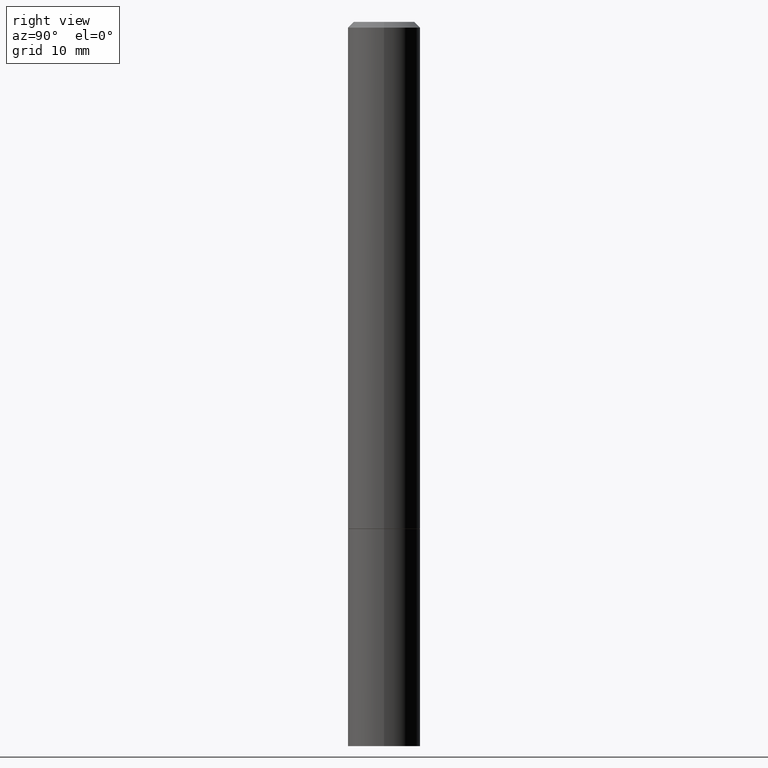
[diagram: clean part render]
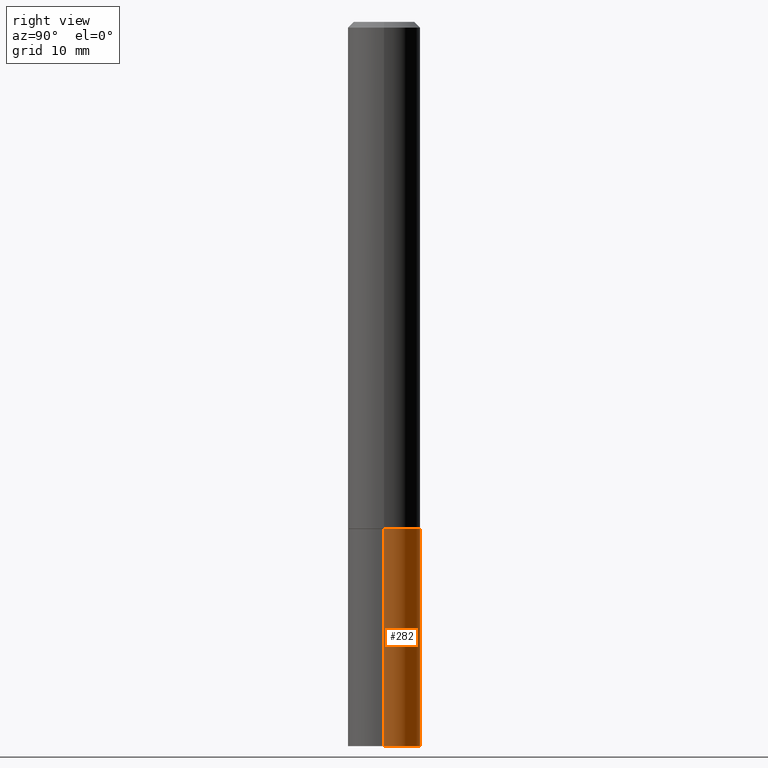
[diagram: same view with one face highlighted and labeled with its STEP entity id]
A machine part, right view. The second image highlights one B-rep face of the part: STEP entity #282.
In plain terms, the highlighted cylindrical surface (edge-blend (fillet) strip) has radius 3.175 mm, axis along (-0, 0, 1).
Its self-contained STEP definition (entity closure, byte-faithful):
#13 = ORIENTED_EDGE ( 'NONE', *, *, #251, .F. ) ;
#14 = VERTEX_POINT ( 'NONE', #366 ) ;
#59 = VECTOR ( 'NONE', #125, 39.37007874015748143 ) ;
#67 = CARTESIAN_POINT ( 'NONE',  ( 4.279570410823989044E-29, -6.110092342975505460E-15, -1.750000000000000222 ) ) ;
#76 = CIRCLE ( 'NONE', #358, 0.1250000000000000000 ) ;
#82 = EDGE_CURVE ( 'NONE', #346, #248, #267, .T. ) ;
#89 = DIRECTION ( 'NONE',  ( 1.000000000000000000, -6.982962677686262766E-15, 0.000000000000000000 ) ) ;
#94 = DIRECTION ( 'NONE',  ( -2.445468806185136597E-29, 3.491481338843145583E-15, 1.000000000000000000 ) ) ;
#95 = CARTESIAN_POINT ( 'NONE',  ( 6.113672015462842613E-29, -8.728703347107864943E-15, -2.500000000000000000 ) ) ;
#97 = AXIS2_PLACEMENT_3D ( 'NONE', #136, #312, #314 ) ;
#125 = DIRECTION ( 'NONE',  ( -2.445468806185136877E-29, 3.491481338843145188E-15, 1.000000000000000000 ) ) ;
#135 = VECTOR ( 'NONE', #211, 39.37007874015748143 ) ;
#136 = CARTESIAN_POINT ( 'NONE',  ( 0.000000000000000000, 0.000000000000000000, 0.000000000000000000 ) ) ;
#155 = CARTESIAN_POINT ( 'NONE',  ( 0.1250000000000000000, -8.728703347107833388E-16, 6.095220969744919741E-30 ) ) ;
#158 = ORIENTED_EDGE ( 'NONE', *, *, #82, .F. ) ;
#164 = CYLINDRICAL_SURFACE ( 'NONE', #97, 0.1250000000000000000 ) ;
#165 = ORIENTED_EDGE ( 'NONE', *, *, #266, .T. ) ;
#169 = CARTESIAN_POINT ( 'NONE',  ( -0.1250000000000000000, -6.531219425341559180E-15, -1.750000000000000222 ) ) ;
#170 = CARTESIAN_POINT ( 'NONE',  ( 0.1250000000000000000, -9.601573681818648281E-15, -2.500000000000000000 ) ) ;
#174 = CARTESIAN_POINT ( 'NONE',  ( -0.1250000000000000000, 8.881784197001252323E-16, -6.148668862818632227E-30 ) ) ;
#182 = EDGE_CURVE ( 'NONE', #346, #14, #76, .T. ) ;
#192 = AXIS2_PLACEMENT_3D ( 'NONE', #67, #269, #89 ) ;
#211 = DIRECTION ( 'NONE',  ( -2.445468806185136877E-29, 3.491481338843145188E-15, 1.000000000000000000 ) ) ;
#248 = VERTEX_POINT ( 'NONE', #295 ) ;
#251 = EDGE_CURVE ( 'NONE', #248, #298, #300, .T. ) ;
#257 = FACE_OUTER_BOUND ( 'NONE', #268, .T. ) ;
#263 = LINE ( 'NONE', #174, #135 ) ;
#266 = EDGE_CURVE ( 'NONE', #14, #298, #263, .T. ) ;
#267 = LINE ( 'NONE', #155, #59 ) ;
#268 = EDGE_LOOP ( 'NONE', ( #303, #165, #13, #158 ) ) ;
#269 = DIRECTION ( 'NONE',  ( -2.445468806185136597E-29, 3.491481338843145583E-15, 1.000000000000000000 ) ) ;
#282 = ADVANCED_FACE ( 'NONE', ( #257 ), #164, .T. ) ;
#295 = CARTESIAN_POINT ( 'NONE',  ( 0.1250000000000000000, -6.982962677686288010E-15, -1.750000000000000222 ) ) ;
#298 = VERTEX_POINT ( 'NONE', #169 ) ;
#300 = CIRCLE ( 'NONE', #192, 0.1250000000000000000 ) ;
#303 = ORIENTED_EDGE ( 'NONE', *, *, #182, .T. ) ;
#312 = DIRECTION ( 'NONE',  ( -2.445468806185136597E-29, 3.491481338843145583E-15, 1.000000000000000000 ) ) ;
#314 = DIRECTION ( 'NONE',  ( 1.000000000000000000, -6.982962677686266711E-15, 4.876176775795935793E-29 ) ) ;
#346 = VERTEX_POINT ( 'NONE', #170 ) ;
#352 = DIRECTION ( 'NONE',  ( 1.000000000000000000, -6.982962677686270655E-15, 0.000000000000000000 ) ) ;
#358 = AXIS2_PLACEMENT_3D ( 'NONE', #95, #94, #352 ) ;
#366 = CARTESIAN_POINT ( 'NONE',  ( -0.1250000000000000000, -6.531219425341559180E-15, -2.500000000000000000 ) ) ;